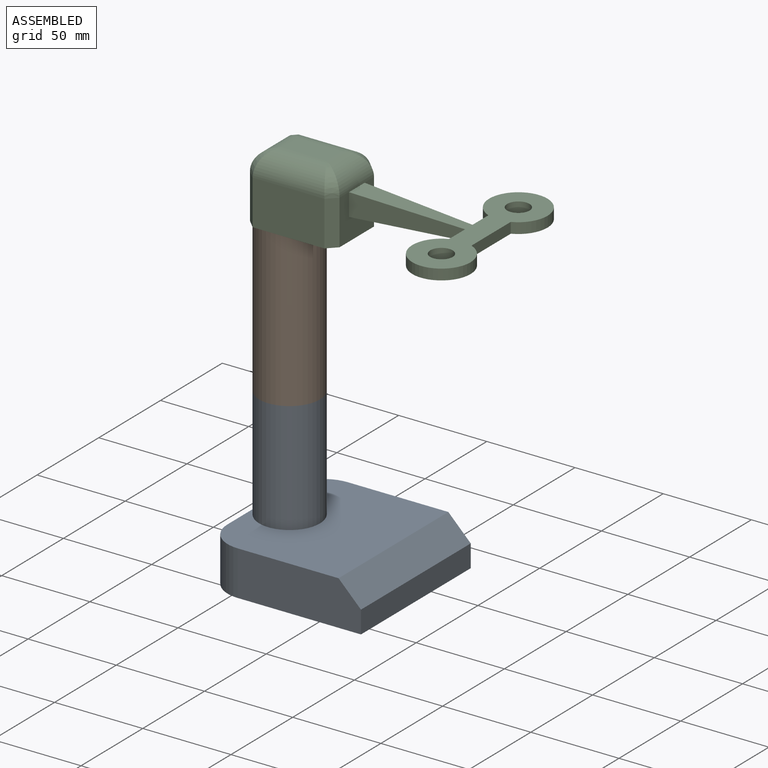
[diagram: assembled view]
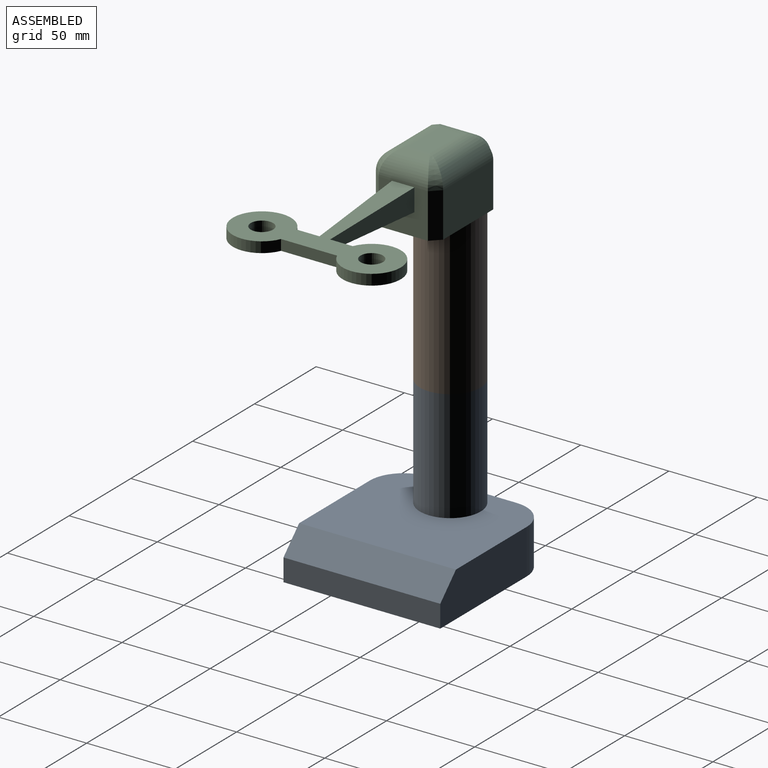
[diagram: assembled view, second angle]
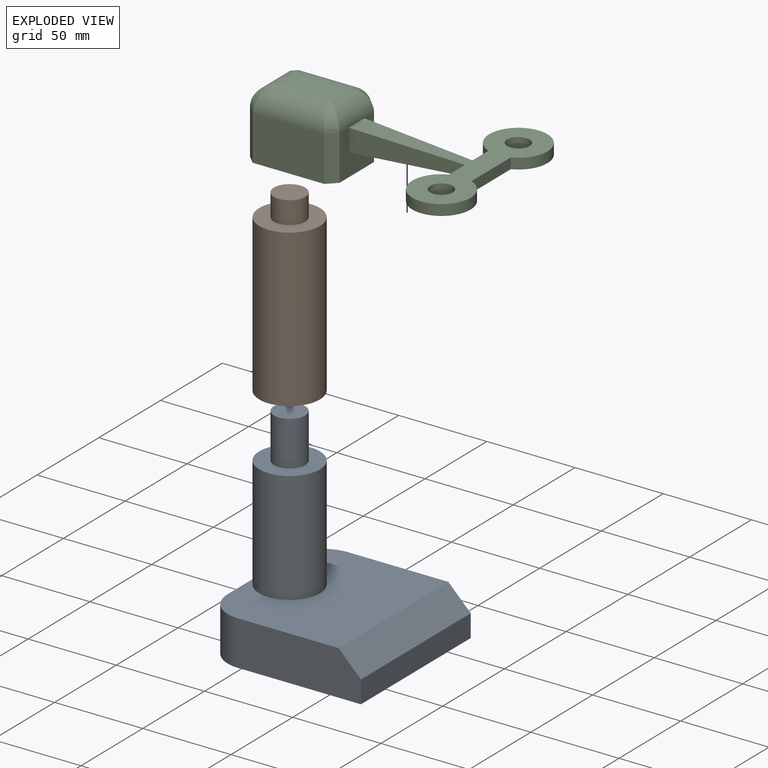
[diagram: exploded view]
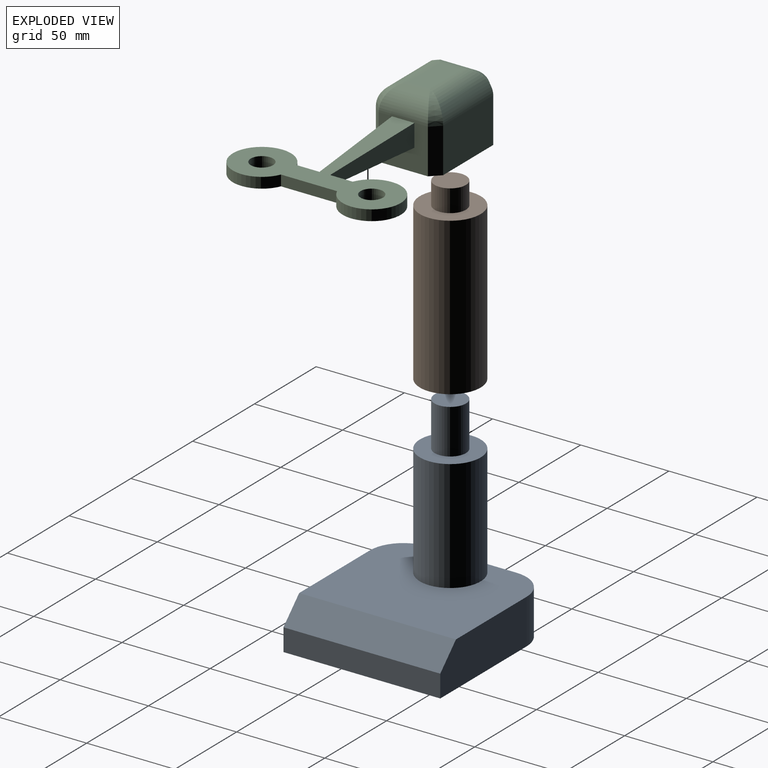
[diagram: exploded view, second angle]
ASSEMBLY  parts=3 mates=2
PART A: 13 faces, bbox 88.9x88.9x114.3 mm
  f0: cylinder r=17.25mm len=63.5mm, axis (0,0,-1), area 6881.1mm2, adj f1,f8
  f1: plane 34.49x34.49mm, normal (0,0,1), area 686.2mm2, adj f0,f10
  f2: plane 88.9x12.7mm, normal (1,0,0), area 1129mm2, adj f3,f7,f9,f12
  f3: plane 69.85x25.4mm, normal (0,1,0), area 1693.5mm2, adj f2,f4,f8,f9,f12
  f4: cylinder r=19.05mm len=25.4mm, axis (0,0,-1), area 760.1mm2, adj f3,f5,f8,f9
  f5: plane 50.8x25.4mm, normal (-1,0,0), area 1290.3mm2, adj f4,f6,f8,f9
  f6: cylinder r=19.05mm len=25.4mm, axis (0,0,-1), area 760.1mm2, adj f5,f7,f8,f9
  f7: plane 69.85x25.4mm, normal (0,-1,0), area 1693.5mm2, adj f2,f6,f8,f9,f12
  f8: plane 88.9x76.2mm, normal (0,0,1), area 5684mm2, adj f0,f3,f4,f5,f6,f7,f12
  f9: plane 88.9x88.9mm, normal (0,0,-1), area 7747.5mm2, adj f2,f3,f4,f5,f6,f7
  f10: cylinder r=8.89mm len=25.4mm, axis (0,0,-1), area 1418.8mm2, adj f1,f11
  f11: plane 17.78x17.78mm, normal (0,0,1), area 248.3mm2, adj f10
  f12: plane 88.9x12.7mm, normal (0.71,0,0.71), area 1596.7mm2, adj f2,f3,f7,f8
PART B: 7 faces, bbox 34.5x34.5x101.6 mm
  f0: cylinder r=17.25mm len=88.9mm, axis (0,0,-1), area 9633.6mm2, adj f1,f2
  f1: plane 34.49x34.49mm, normal (0,0,1), area 686.2mm2, adj f0,f5
  f2: plane 34.49x34.49mm, normal (0,0,-1), area 649.4mm2, adj f0,f3
  f3: cylinder r=9.53mm len=25.4mm, axis (0,0,-1), area 1520.1mm2, adj f2,f4
  f4: plane 19.05x19.05mm, normal (0,0,-1), area 285mm2, adj f3
  f5: cylinder r=8.89mm len=17.78mm, axis (0,0,-1), area 709.4mm2, adj f1,f6
  f6: plane 17.78x17.78mm, normal (0,0,1), area 248.3mm2, adj f5
PART C: 35 faces, bbox 137.4x95.3x38.1 mm
  f0: plane 40.64x25.4mm, normal (0,-1,0), area 1032.3mm2, adj f5,f23,f29,f33
  f1: plane 27.94x25.4mm, normal (1,0,0), area 548.4mm2, adj f5,f8,f9,f10,f11,f24,f31,f33
  f2: plane 40.64x25.4mm, normal (0,1,0), area 1032.3mm2, adj f5,f26,f27,f31
  f3: plane 27.94x25.4mm, normal (-1,0,0), area 709.7mm2, adj f5,f25,f27,f29
  f4: plane 25.4x12.7mm, normal (0,0,1), area 322.6mm2, adj f23,f24,f25,f26
  f5: plane 50.8x38.1mm, normal (0,0,-1), area 1598.8mm2, adj f0,f1,f2,f3,f6,f27,f29,f31
  f6: cylinder r=9.53mm len=19.05mm, axis (0,0,-1), area 912.1mm2, adj f5,f7
  f7: plane 19.05x19.05mm, normal (0,0,-1), area 285mm2, adj f6
  f8: plane 63.5x12.7mm, normal (0.05,0,-1), area 595.9mm2, adj f1,f9,f11,f14
  f9: plane 63.5x12.7mm, normal (0.05,1,0), area 595.9mm2, adj f1,f8,f10,f12
  f10: plane 63.5x12.7mm, normal (0.05,0,1), area 595.9mm2, adj f1,f9,f11,f13
  f11: plane 63.5x12.7mm, normal (0.05,-1,0), area 595.9mm2, adj f1,f8,f10,f16
  f12: plane 12.8x6.04mm, normal (-1,0,0), area 77.4mm2, adj f9,f13,f14,f18
  f13: plane 95.29x33.02mm, normal (0,0,1), area 1841.3mm2, adj f10,f12,f15,f16,f17,f18,f20,f21
  f14: plane 31.79x12.7mm, normal (0,0,-1), area 403.7mm2, adj f8,f12,f15,f16,f19,f22
  f15: plane 31.79x6.04mm, normal (1,0,0), area 192.1mm2, adj f13,f14,f18,f21
  f16: plane 12.94x6.04mm, normal (-1,0,0), area 78.2mm2, adj f11,f13,f14,f21
  f17: cylinder r=6.35mm len=12.7mm, axis (0,0,1), area 241.2mm2, adj f13,f19
  f18: cylinder r=16.51mm len=33.02mm, axis (0,0,1), area 548.3mm2, adj f12,f13,f15,f19
  f19: plane 33.02x31.75mm, normal (0,0,-1), area 718.8mm2, adj f14,f17,f18
  f20: cylinder r=6.35mm len=12.7mm, axis (0,0,1), area 241.2mm2, adj f13,f22
  f21: cylinder r=16.51mm len=33.02mm, axis (0,0,1), area 548.3mm2, adj f13,f15,f16,f22
  f22: plane 33.02x31.75mm, normal (0,0,-1), area 718.8mm2, adj f14,f20,f21
  f23: cylinder r=12.7mm len=40.64mm, axis (-1,0,0), area 658.7mm2, adj f0,f4,f30,f34
  f24: cylinder r=12.7mm len=27.94mm, axis (0,-1,0), area 405.4mm2, adj f1,f4,f32,f34
  f25: cylinder r=12.7mm len=27.94mm, axis (0,1,0), area 405.4mm2, adj f3,f4,f28,f30
  f26: cylinder r=12.7mm len=40.64mm, axis (1,0,0), area 658.7mm2, adj f2,f4,f28,f32
  f27: plane 25.4x5.08mm, normal (-0.71,0.71,0), area 182.5mm2, adj f2,f3,f5,f28
  f28: bspline ~12.7x12.7mm, area 59.8mm2, adj f25,f26,f27
  f29: plane 25.4x5.08mm, normal (-0.71,-0.71,0), area 182.5mm2, adj f0,f3,f5,f30
  f30: bspline ~12.95x12.7mm, area 59.8mm2, adj f23,f25,f29
  f31: plane 25.4x5.08mm, normal (0.71,0.71,0), area 182.5mm2, adj f1,f2,f5,f32
  f32: bspline ~12.95x12.7mm, area 59.8mm2, adj f24,f26,f31
  f33: plane 25.4x5.08mm, normal (0.71,-0.71,0), area 182.5mm2, adj f0,f1,f5,f34
  f34: bspline ~12.95x12.7mm, area 59.8mm2, adj f23,f24,f33
PLACE A t=(-21.56,17.05,-12.9)mm
PLACE B t=(-48.7,17.05,76)mm
PLACE C t=(-35.99,17.05,164.9)mm
MATE parallel C.f6 <-> B.f5  axis (0,0,-1) through (-48.7,17.05,164.9)mm
MATE fastened B.f0 <-> A.f0  axis (0,0,-1) through (-48.7,17.05,76)mm
